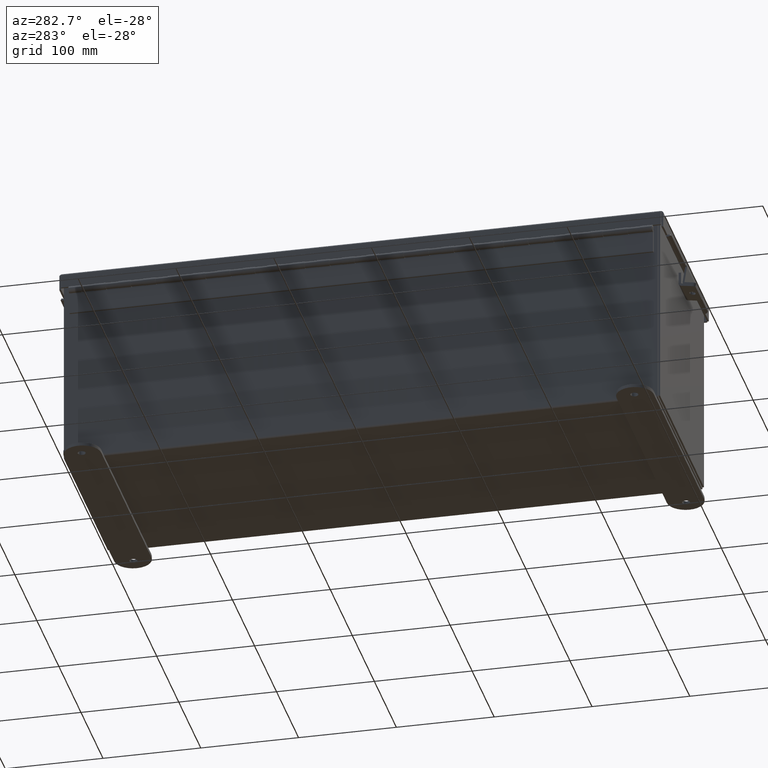
[diagram: clean part render]
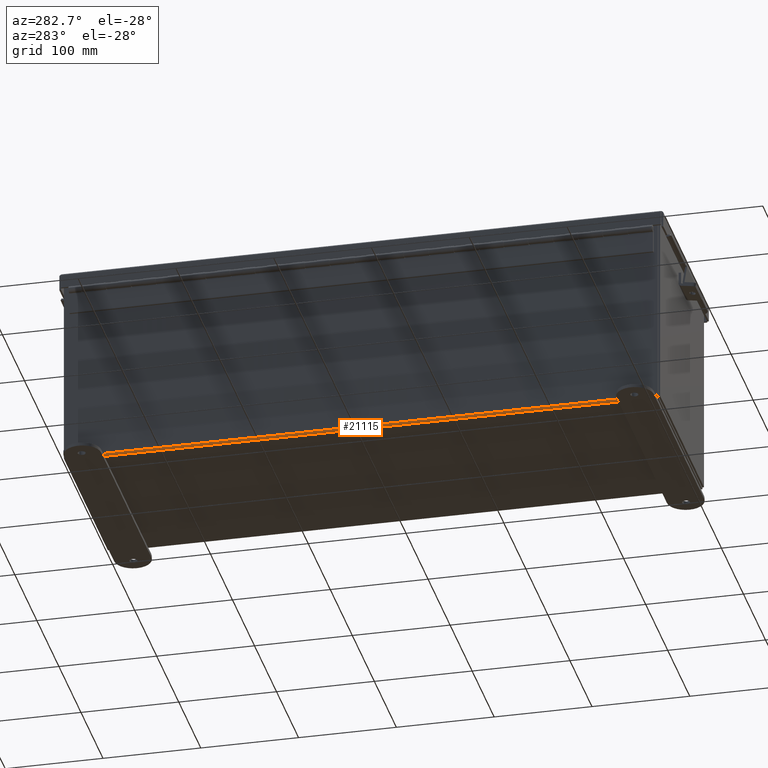
[diagram: same view with one face highlighted and labeled with its STEP entity id]
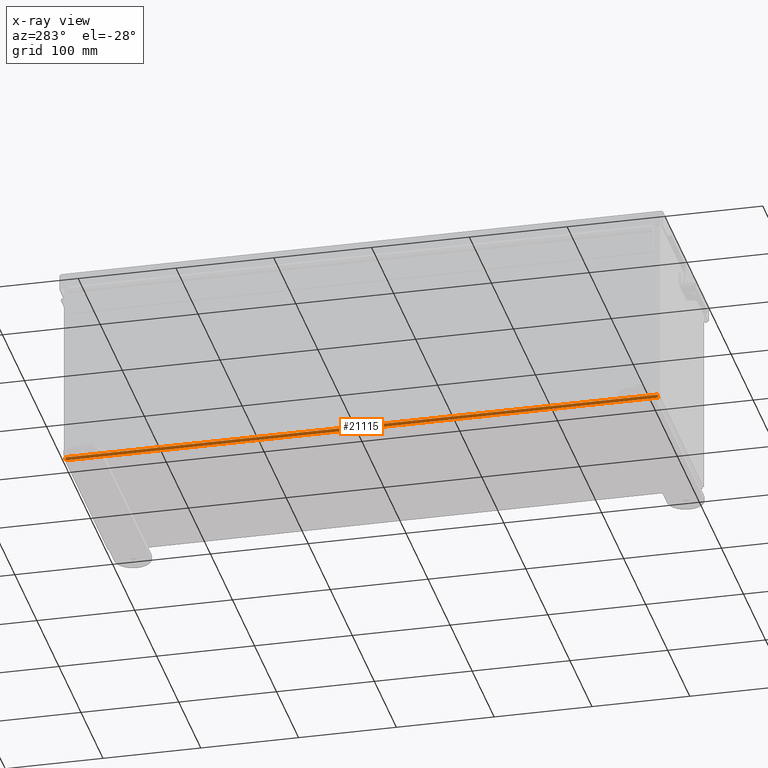
[diagram: x-ray of the same camera — body ghosted, the highlighted face saturated]
A machine part, auxiliary view. The second image highlights one B-rep face of the part: STEP entity #21115.
The next image is the same camera in x-ray: the body ghosted, the highlighted face saturated — about 0% of this face is hidden behind the body in this view.
In plain terms, the highlighted cylindrical surface (edge-blend (fillet) strip) has radius 2.2276 mm, axis along (0, -1, 0).
Its self-contained STEP definition (entity closure, byte-faithful):
#1351 = CARTESIAN_POINT ( 'NONE',  ( -3.912299999999999700, -11.92530000000000000, -0.07469999999999966900 ) ) ;
#2340 = ORIENTED_EDGE ( 'NONE', *, *, #3492, .F. ) ;
#3492 = EDGE_CURVE ( 'NONE', #11691, #16135, #7430, .T. ) ;
#3750 = EDGE_CURVE ( 'NONE', #16135, #4640, #6922, .T. ) ;
#3929 = CARTESIAN_POINT ( 'NONE',  ( -4.000000000000000000, 11.92529999999999600, 0.01299999999999984300 ) ) ;
#4640 = VERTEX_POINT ( 'NONE', #10446 ) ;
#4980 = CARTESIAN_POINT ( 'NONE',  ( -3.912299999999999700, -11.92529999999999600, -0.07469999999999966900 ) ) ;
#6046 = CARTESIAN_POINT ( 'NONE',  ( -3.912299999999999700, -11.92529999999999600, 0.01300000000000042300 ) ) ;
#6747 = EDGE_LOOP ( 'NONE', ( #2340, #13981, #20861, #15001 ) ) ;
#6922 = CIRCLE ( 'NONE', #10510, 0.08770000000000009700 ) ;
#7430 = LINE ( 'NONE', #1351, #12579 ) ;
#7499 = DIRECTION ( 'NONE',  ( -1.000000000000000000, 0.0000000000000000000, -3.480030137311043200E-015 ) ) ;
#8241 = CARTESIAN_POINT ( 'NONE',  ( -3.912299999999999700, 11.92529999999999600, 0.01300000000000042300 ) ) ;
#8333 = DIRECTION ( 'NONE',  ( 0.0000000000000000000, 0.0000000000000000000, -1.000000000000000000 ) ) ;
#8750 = EDGE_CURVE ( 'NONE', #9440, #11691, #10548, .T. ) ;
#8987 = AXIS2_PLACEMENT_3D ( 'NONE', #13296, #13864, #7499 ) ;
#9300 = CARTESIAN_POINT ( 'NONE',  ( -4.000000000000000000, -11.92529999999999600, 0.01300000000000039000 ) ) ;
#9440 = VERTEX_POINT ( 'NONE', #9300 ) ;
#10446 = CARTESIAN_POINT ( 'NONE',  ( -4.000000000000000000, 11.92529999999999600, 0.01300000000000011600 ) ) ;
#10510 = AXIS2_PLACEMENT_3D ( 'NONE', #8241, #20397, #8333 ) ;
#10548 = CIRCLE ( 'NONE', #18398, 0.08770000000000009700 ) ;
#11691 = VERTEX_POINT ( 'NONE', #4980 ) ;
#11791 = LINE ( 'NONE', #3929, #16310 ) ;
#12579 = VECTOR ( 'NONE', #13448, 39.37007874015748100 ) ;
#13296 = CARTESIAN_POINT ( 'NONE',  ( -3.912299999999999700, -11.92530000000000000, 0.01300000000000042300 ) ) ;
#13448 = DIRECTION ( 'NONE',  ( -0.0000000000000000000, 1.000000000000000000, -0.0000000000000000000 ) ) ;
#13864 = DIRECTION ( 'NONE',  ( 0.0000000000000000000, -1.000000000000000000, 0.0000000000000000000 ) ) ;
#13981 = ORIENTED_EDGE ( 'NONE', *, *, #8750, .F. ) ;
#14674 = DIRECTION ( 'NONE',  ( 0.0000000000000000000, 0.0000000000000000000, -1.000000000000000000 ) ) ;
#15001 = ORIENTED_EDGE ( 'NONE', *, *, #3750, .F. ) ;
#16135 = VERTEX_POINT ( 'NONE', #18405 ) ;
#16310 = VECTOR ( 'NONE', #21816, 39.37007874015748100 ) ;
#16374 = DIRECTION ( 'NONE',  ( 0.0000000000000000000, -1.000000000000000000, 0.0000000000000000000 ) ) ;
#16859 = EDGE_CURVE ( 'NONE', #9440, #4640, #11791, .T. ) ;
#18398 = AXIS2_PLACEMENT_3D ( 'NONE', #6046, #16374, #14674 ) ;
#18405 = CARTESIAN_POINT ( 'NONE',  ( -3.912299999999999700, 11.92529999999999600, -0.07470000000000000300 ) ) ;
#19631 = CYLINDRICAL_SURFACE ( 'NONE', #8987, 0.08770000000000026400 ) ;
#20196 = FACE_OUTER_BOUND ( 'NONE', #6747, .T. ) ;
#20397 = DIRECTION ( 'NONE',  ( -0.0000000000000000000, 1.000000000000000000, -0.0000000000000000000 ) ) ;
#20861 = ORIENTED_EDGE ( 'NONE', *, *, #16859, .T. ) ;
#21115 = ADVANCED_FACE ( 'NONE', ( #20196 ), #19631, .T. ) ;
#21816 = DIRECTION ( 'NONE',  ( 7.971515555031526700E-032, 1.000000000000000000, -2.290800226127865500E-017 ) ) ;